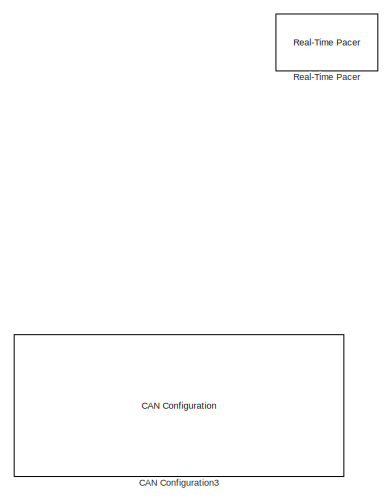
[diagram: root canvas - part 1/14, top left region]
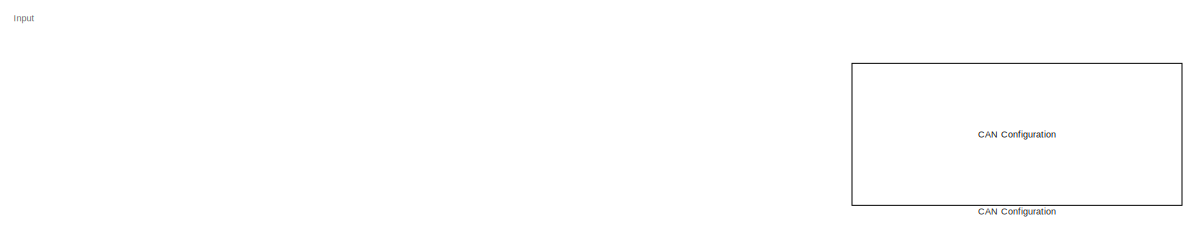
[diagram: root canvas - part 2/14, top left region]
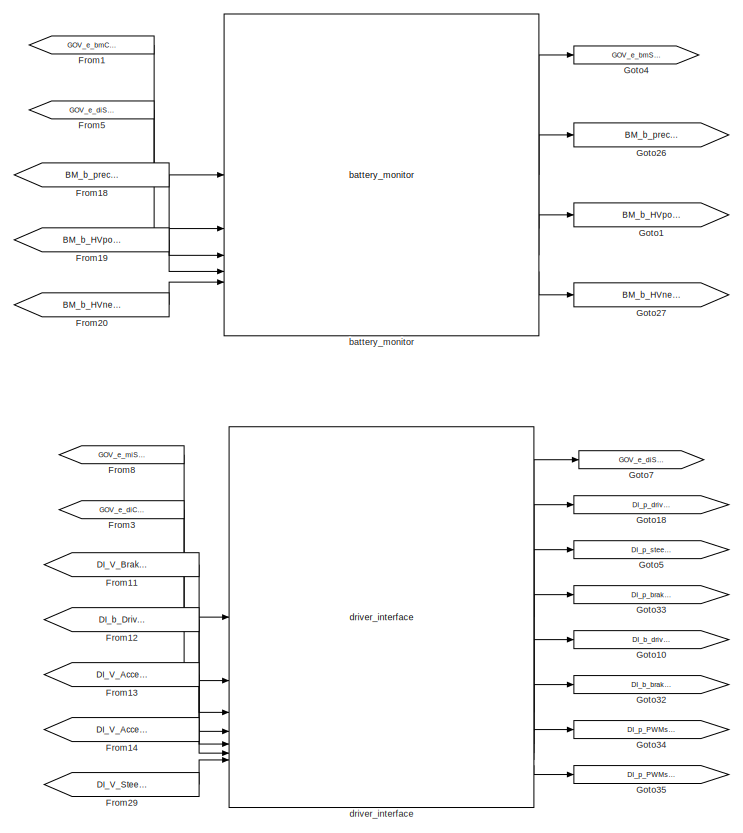
[diagram: root canvas - part 3/14, top center region]
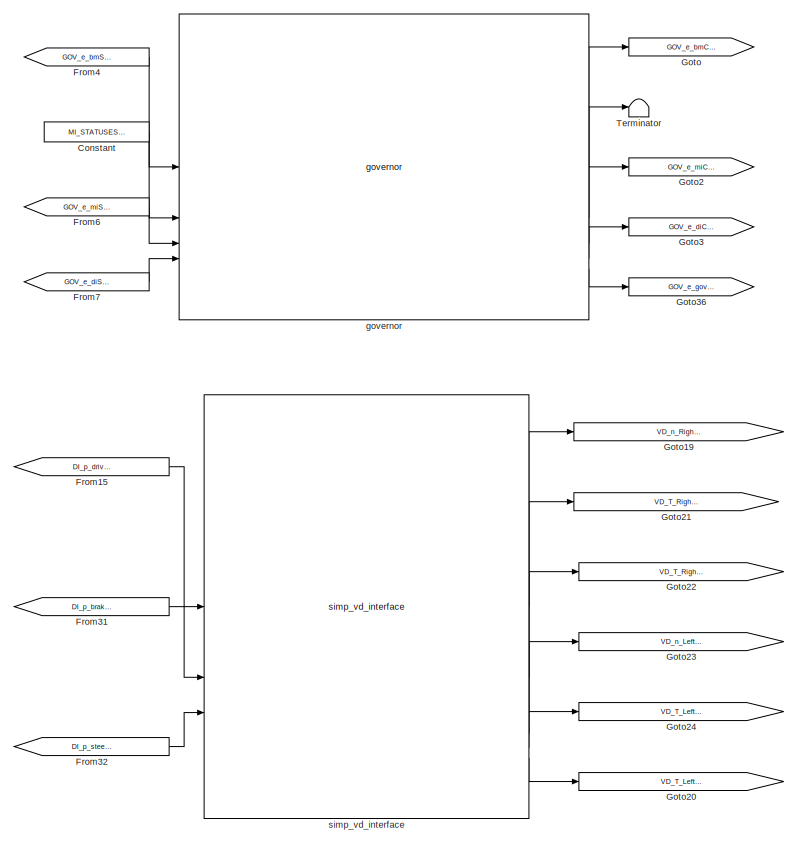
[diagram: root canvas - part 4/14, top center region]
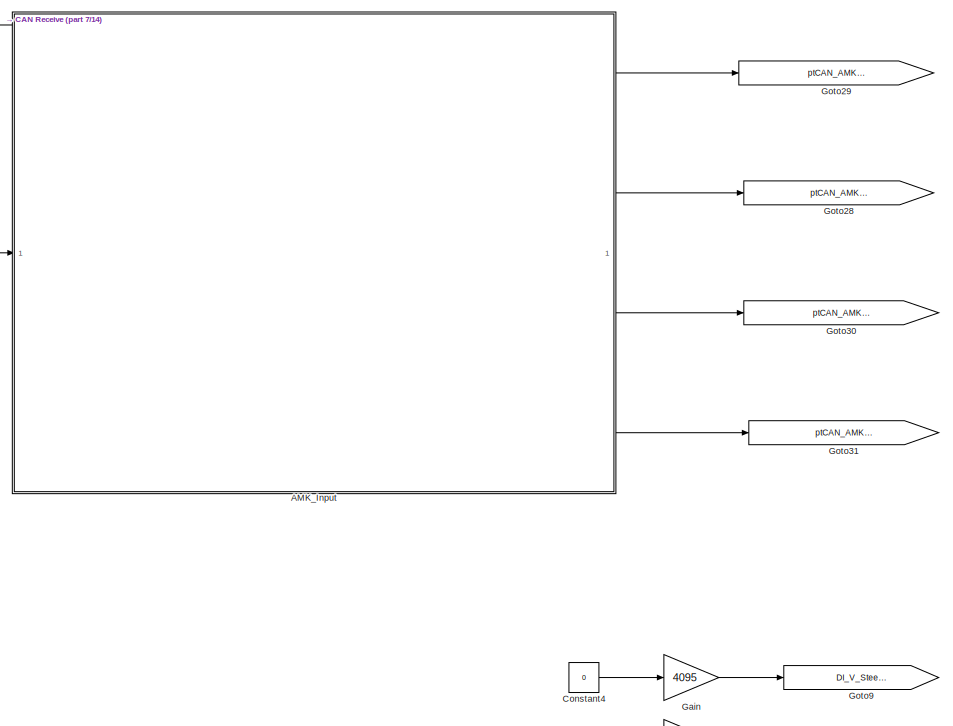
[diagram: root canvas - part 5/14, top left region]
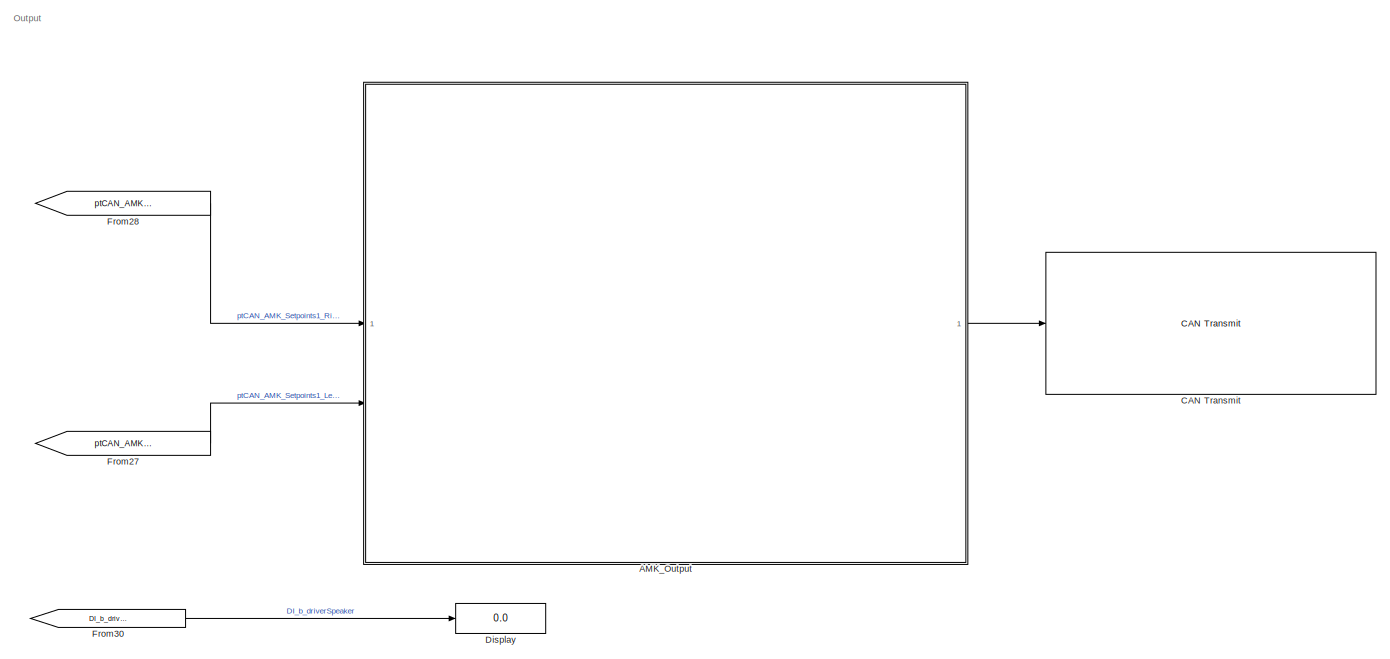
[diagram: root canvas - part 6/14, top right region]
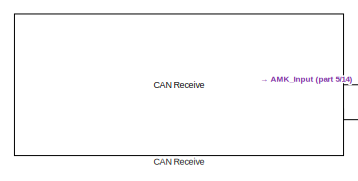
[diagram: root canvas - part 7/14, top left region]
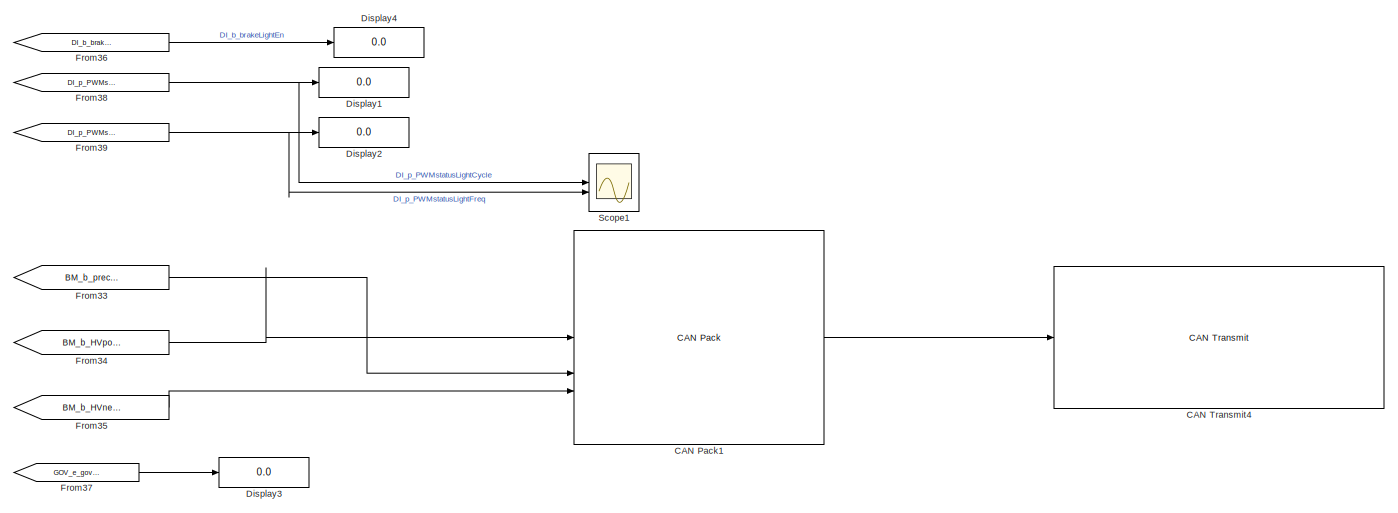
[diagram: root canvas - part 8/14, middle right region]
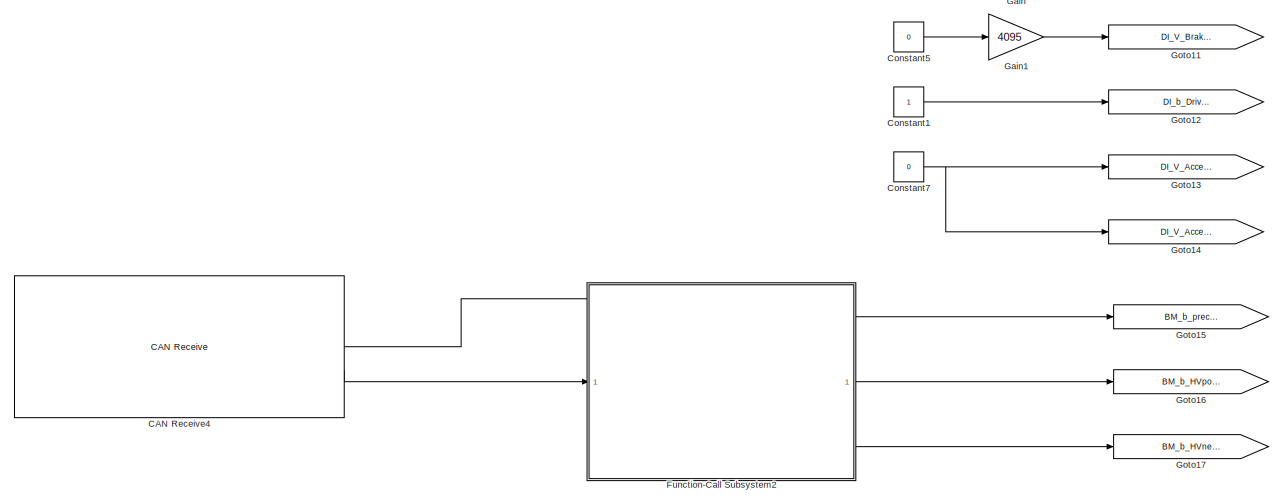
[diagram: root canvas - part 9/14, middle left region]
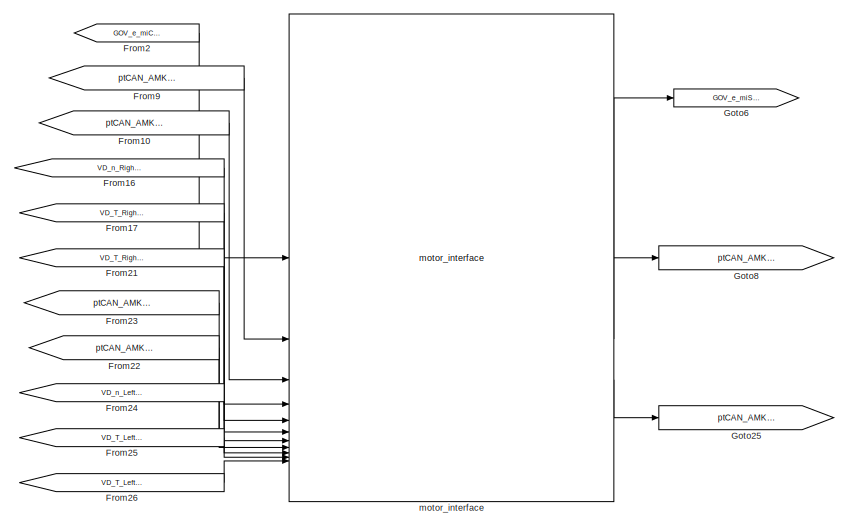
[diagram: root canvas - part 10/14, central region]
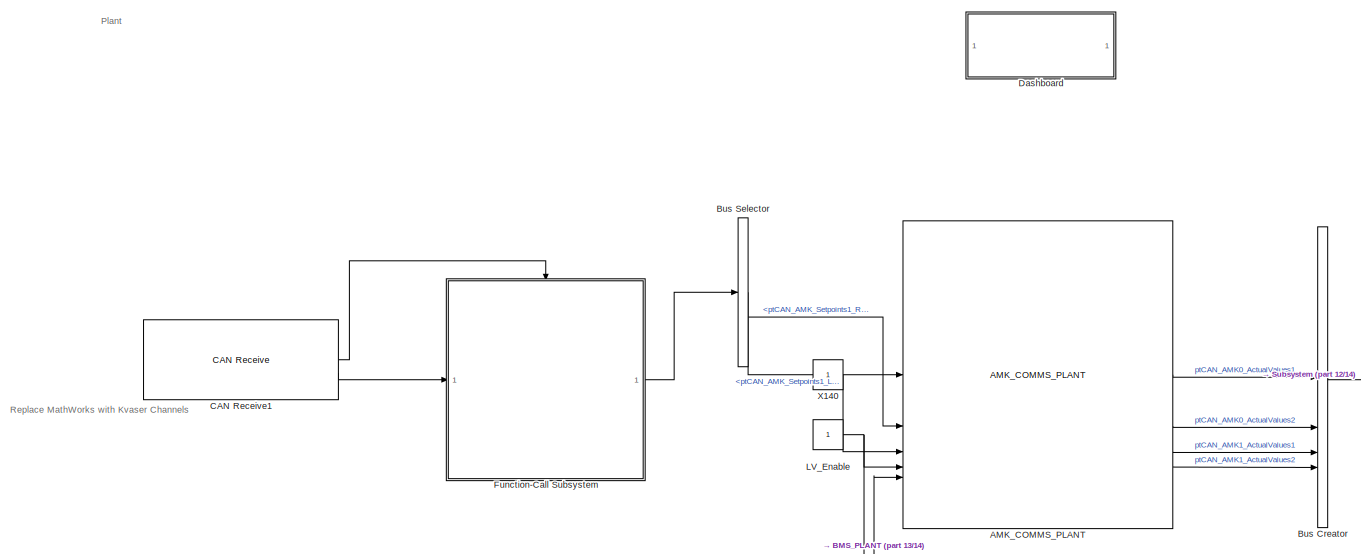
[diagram: root canvas - part 11/14, bottom center region]
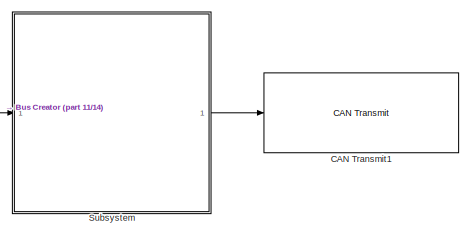
[diagram: root canvas - part 12/14, bottom center region]
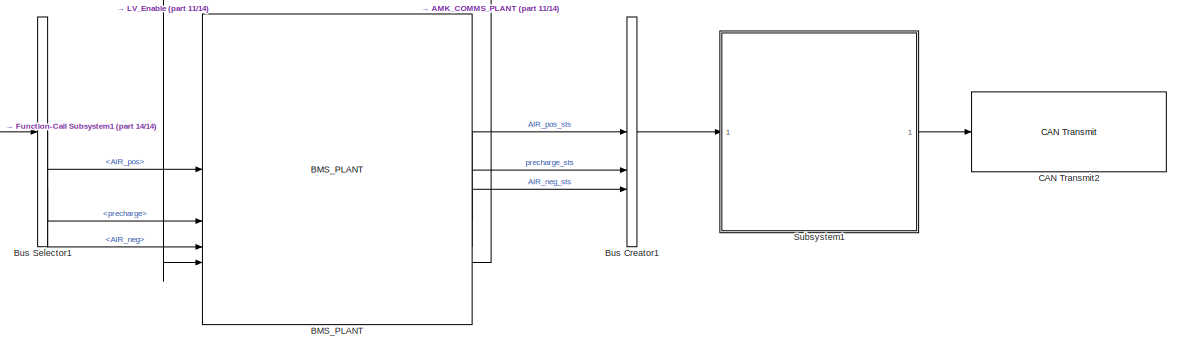
[diagram: root canvas - part 13/14, bottom center region]
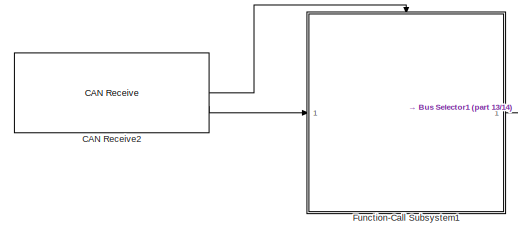
[diagram: root canvas - part 14/14, bottom center region]
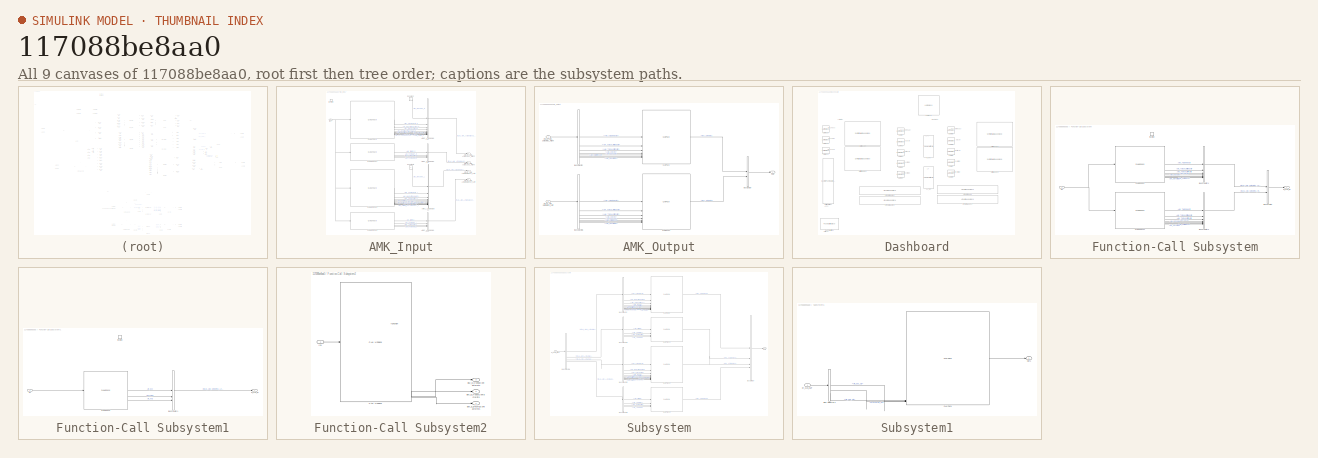
[diagram: thumbnail index - all 9 canvases of the model, root first then tree order]
MODEL slx_117088be8aa0
KIND model
CONFIG AbsTol = auto
CONFIG EnableMultiTasking = off
CONFIG FixedStep = auto
CONFIG MaxStep = auto
CONFIG MinStep = auto
CONFIG RelTol = 1e-3
CONFIG SampleTimeConstraint = Unconstrained
CONFIG SolverName = VariableStepAuto
CONFIG StartTime = 0.0
CONFIG StopTime = inf
BLOCK [Reference] AMK_COMMS_PLANT  REF=AMK_comms_plant_lib/AMK_COMMS_PLANT
  SourceBlock = AMK_comms_plant_lib/AMK_COMMS_PLANT
  SourceType = SubSystem
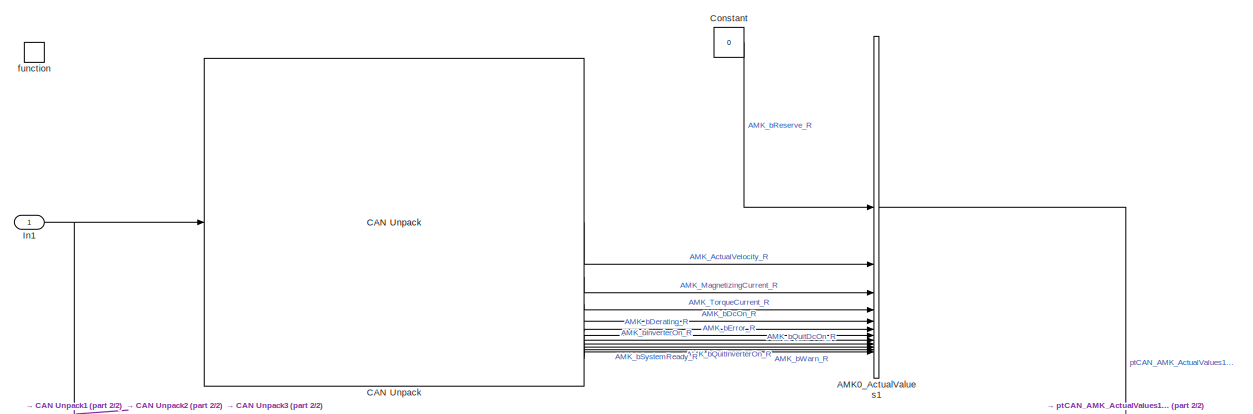
[diagram: AMK_Input - part 1/2, full width, top band]
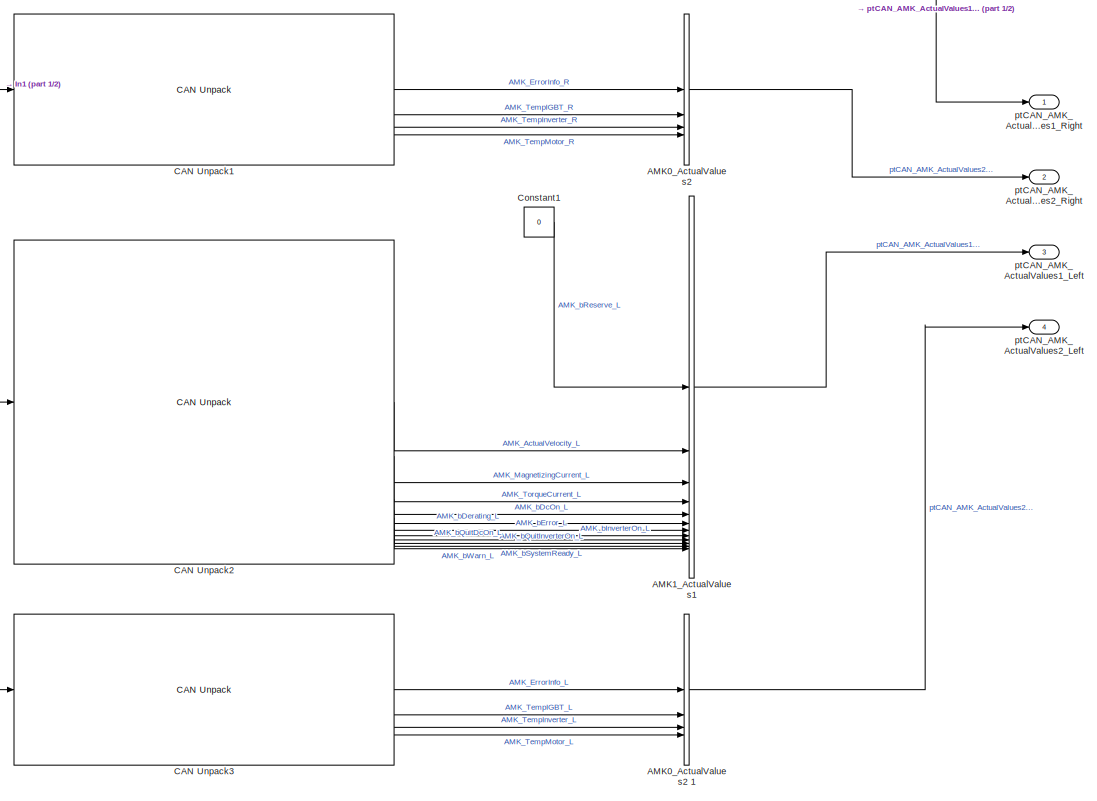
[diagram: AMK_Input - part 2/2, full width, bottom band]
BLOCK [SubSystem] AMK_Input
  TreatAsAtomicUnit = on
BLOCK [BusCreator] AMK_Input/AMK0_ActualValues1 
  DisplayOption = bar
  InheritFromInputs = on
  Inputs = 12
BLOCK [BusCreator] AMK_Input/AMK0_ActualValues2 
  DisplayOption = bar
  InheritFromInputs = on
  Inputs = 4
BLOCK [BusCreator] AMK_Input/AMK0_ActualValues2 1
  DisplayOption = bar
  InheritFromInputs = on
  Inputs = 4
BLOCK [BusCreator] AMK_Input/AMK1_ActualValues1
  DisplayOption = bar
  InheritFromInputs = on
  Inputs = 12
BLOCK [Reference] AMK_Input/CAN Unpack  REF=canmsglib/CAN Unpack
  LibrarySourceBlock = canlib/CAN Unpack
  SourceBlock = canmsglib/CAN Unpack
  SourceType = CAN Unpack
BLOCK [Reference] AMK_Input/CAN Unpack1  REF=canmsglib/CAN Unpack
  LibrarySourceBlock = canlib/CAN Unpack
  SourceBlock = canmsglib/CAN Unpack
  SourceType = CAN Unpack
BLOCK [Reference] AMK_Input/CAN Unpack2  REF=canmsglib/CAN Unpack
  LibrarySourceBlock = canlib/CAN Unpack
  SourceBlock = canmsglib/CAN Unpack
  SourceType = CAN Unpack
BLOCK [Reference] AMK_Input/CAN Unpack3  REF=canmsglib/CAN Unpack
  LibrarySourceBlock = canlib/CAN Unpack
  SourceBlock = canmsglib/CAN Unpack
  SourceType = CAN Unpack
BLOCK [Constant] AMK_Input/Constant
  Value = 0
BLOCK [Constant] AMK_Input/Constant1
  Value = 0
BLOCK [Inport] AMK_Input/In1
BLOCK [TriggerPort] AMK_Input/function
  StatesWhenEnabling = held
  TriggerType = function-call
  VariantControl = (inherit)
BLOCK [Outport] AMK_Input/ptCAN_AMK_ActualValues1_Left
  Port = 3
BLOCK [Outport] AMK_Input/ptCAN_AMK_ActualValues1_Right
BLOCK [Outport] AMK_Input/ptCAN_AMK_ActualValues2_Left
  Port = 4
BLOCK [Outport] AMK_Input/ptCAN_AMK_ActualValues2_Right
  Port = 2
BLOCK [SubSystem] AMK_Output
BLOCK [BusCreator] AMK_Output/Bus Creator
  DisplayOption = bar
  InheritFromInputs = on
  Inputs = 2
BLOCK [BusSelector] AMK_Output/Bus Selector
  OutputSignals = AMK_TargetVelocity,AMK_TorqueLimitNegativ,AMK_TorqueLimitPositiv,AMK_bDcOn,AMK_bEnable,AMK_bErrorReset,AMK_bInverterOn
BLOCK [BusSelector] AMK_Output/Bus Selector1
  OutputSignals = AMK_TargetVelocity,AMK_TorqueLimitNegativ,AMK_TorqueLimitPositiv,AMK_bDcOn,AMK_bEnable,AMK_bErrorReset,AMK_bInverterOn
BLOCK [Reference] AMK_Output/CAN Pack  REF=canmsglib/CAN Pack
  LibrarySourceBlock = canlib/CAN Pack
  SourceBlock = canmsglib/CAN Pack
  SourceType = CAN Pack
BLOCK [Reference] AMK_Output/CAN Pack1  REF=canmsglib/CAN Pack
  LibrarySourceBlock = canlib/CAN Pack
  SourceBlock = canmsglib/CAN Pack
  SourceType = CAN Pack
BLOCK [Outport] AMK_Output/Out1
BLOCK [Inport] AMK_Output/ptCAN_AMK_Setpoints1_Left
  Port = 2
BLOCK [Inport] AMK_Output/ptCAN_AMK_Setpoints1_Right
BLOCK [Reference] BMS_PLANT  REF=BMS_plant_lib/BMS_PLANT
  SourceBlock = BMS_plant_lib/BMS_PLANT
  SourceType = SubSystem
BLOCK [BusCreator] Bus Creator
  DisplayOption = bar
  InheritFromInputs = on
  Inputs = 4
BLOCK [BusCreator] Bus Creator1
  DisplayOption = bar
  InheritFromInputs = on
  Inputs = 3
BLOCK [BusSelector] Bus Selector
  OutputSignals = ptCAN_AMK_Setpoints1_Left,ptCAN_AMK_Setpoints1_Right
BLOCK [BusSelector] Bus Selector1
  OutputSignals = AIR_pos,precharge,AIR_neg
BLOCK [Reference] CAN Configuration  REF=canlib/CAN Configuration
  SourceBlock = canlib/CAN Configuration
  SourceType = CAN Configuration
BLOCK [Reference] CAN Configuration3  REF=canlib/CAN Configuration
  SourceBlock = canlib/CAN Configuration
  SourceType = CAN Configuration
BLOCK [Reference] CAN Pack1  REF=canmsglib/CAN Pack
  LibrarySourceBlock = embeddedtargetslib/Host Communication/CAN Pack
  SourceBlock = canmsglib/CAN Pack
  SourceType = CAN Pack
BLOCK [Reference] CAN Receive  REF=canlib/CAN Receive
  SourceBlock = canlib/CAN Receive
  SourceType = CAN Receive
BLOCK [Reference] CAN Receive1  REF=canlib/CAN Receive
  SourceBlock = canlib/CAN Receive
  SourceType = CAN Receive
BLOCK [Reference] CAN Receive2  REF=canlib/CAN Receive
  SourceBlock = canlib/CAN Receive
  SourceType = CAN Receive
BLOCK [Reference] CAN Receive4  REF=canlib/CAN Receive
  SourceBlock = canlib/CAN Receive
  SourceType = CAN Receive
BLOCK [Reference] CAN Transmit  REF=canlib/CAN Transmit
  SourceBlock = canlib/CAN Transmit
  SourceType = CAN Transmit
BLOCK [Reference] CAN Transmit1  REF=canlib/CAN Transmit
  SourceBlock = canlib/CAN Transmit
  SourceType = CAN Transmit
BLOCK [Reference] CAN Transmit2  REF=canlib/CAN Transmit
  SourceBlock = canlib/CAN Transmit
  SourceType = CAN Transmit
BLOCK [Reference] CAN Transmit4  REF=canlib/CAN Transmit
  SourceBlock = canlib/CAN Transmit
  SourceType = CAN Transmit
BLOCK [Constant] Constant
  OutDataTypeStr = Enum: MI_STATUSES
  Value = MI_STATUSES.STS_INIT
BLOCK [Constant] Constant1
  VectorParams1D = off
BLOCK [Constant] Constant4
  Value = 0
BLOCK [Constant] Constant5
  Value = 0
BLOCK [Constant] Constant7
  Value = 0
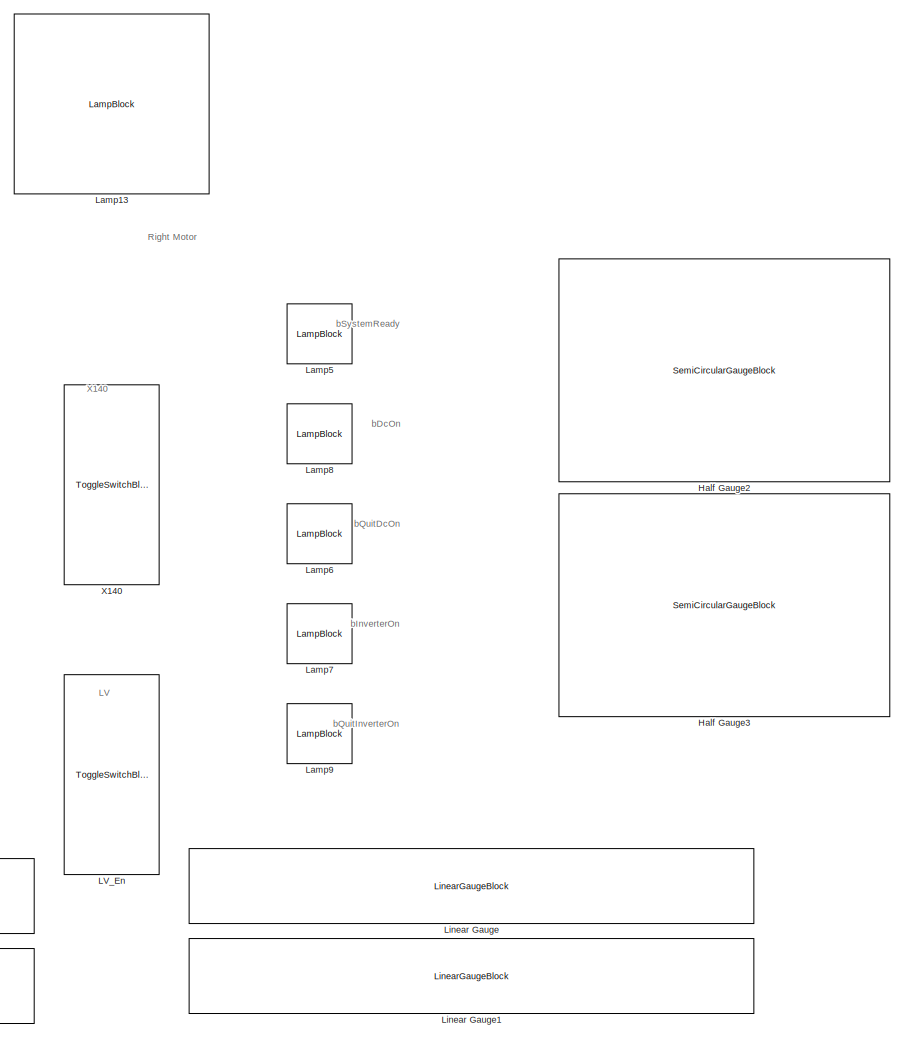
[diagram: Dashboard - part 1/2, right side, full height]
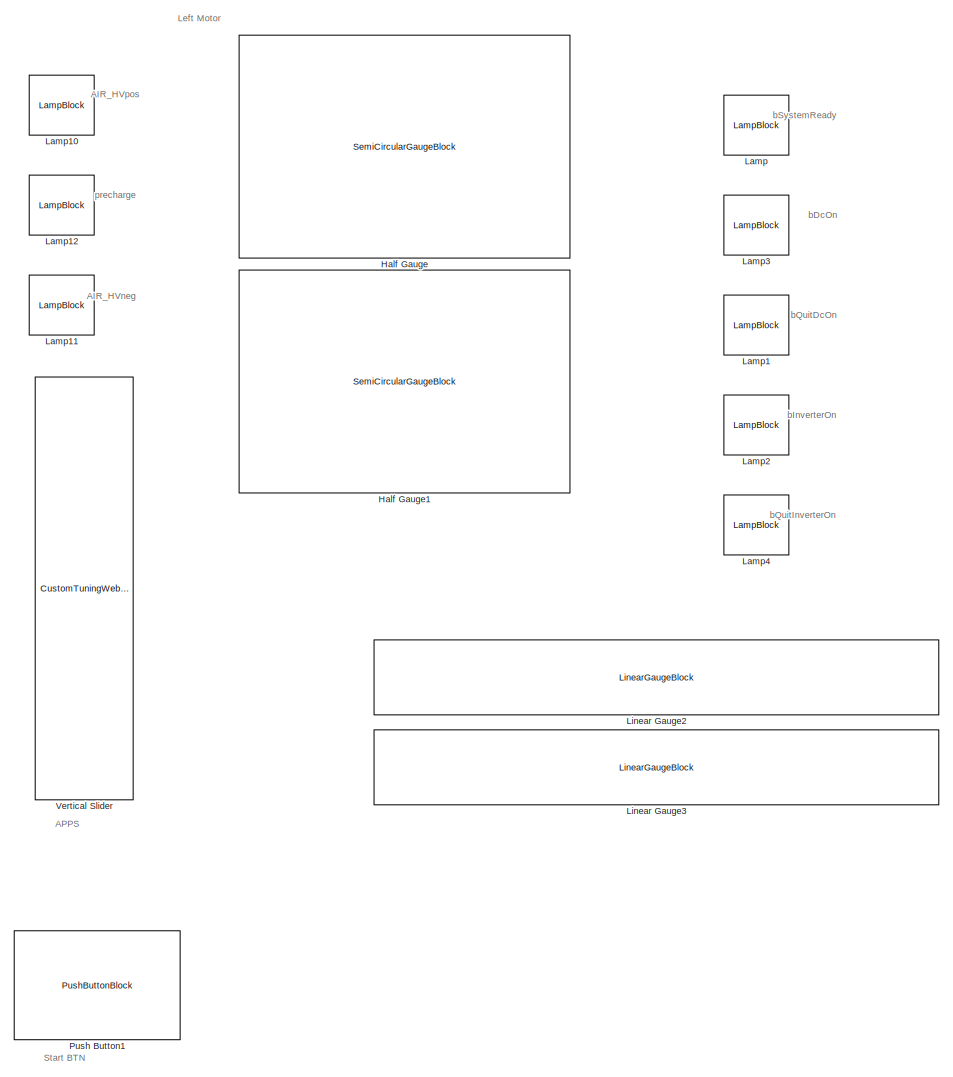
[diagram: Dashboard - part 2/2, left side, full height]
BLOCK [SubSystem] Dashboard
BLOCK [SemiCircularGaugeBlock] Dashboard/Half Gauge
  LabelPosition = Bottom
  ScaleMax = 20000
  TickInterval = 2000
BLOCK [SemiCircularGaugeBlock] Dashboard/Half Gauge1
  LabelPosition = Bottom
  ScaleMax = 1000
  TickInterval = 100
BLOCK [SemiCircularGaugeBlock] Dashboard/Half Gauge2
  LabelPosition = Bottom
  ScaleMax = 20000
  TickInterval = 2000
BLOCK [SemiCircularGaugeBlock] Dashboard/Half Gauge3
  LabelPosition = Bottom
  ScaleMax = 1000
  TickInterval = 100
BLOCK [ToggleSwitchBlock] Dashboard/LV_En
  LabelPosition = Bottom
BLOCK [LampBlock] Dashboard/Lamp
  LabelPosition = Hide
BLOCK [LampBlock] Dashboard/Lamp1
  LabelPosition = Hide
BLOCK [LampBlock] Dashboard/Lamp10
  LabelPosition = Hide
BLOCK [LampBlock] Dashboard/Lamp11
  LabelPosition = Hide
BLOCK [LampBlock] Dashboard/Lamp12
  LabelPosition = Hide
BLOCK [LampBlock] Dashboard/Lamp13
  LabelPosition = Hide
BLOCK [LampBlock] Dashboard/Lamp2
  LabelPosition = Hide
BLOCK [LampBlock] Dashboard/Lamp3
  LabelPosition = Hide
BLOCK [LampBlock] Dashboard/Lamp4
  LabelPosition = Hide
BLOCK [LampBlock] Dashboard/Lamp5
  LabelPosition = Hide
BLOCK [LampBlock] Dashboard/Lamp6
  LabelPosition = Hide
BLOCK [LampBlock] Dashboard/Lamp7
  LabelPosition = Hide
BLOCK [LampBlock] Dashboard/Lamp8
  LabelPosition = Hide
BLOCK [LampBlock] Dashboard/Lamp9
  LabelPosition = Hide
BLOCK [LinearGaugeBlock] Dashboard/Linear Gauge
  ScaleMax = 20000
  TickInterval = 2000
BLOCK [LinearGaugeBlock] Dashboard/Linear Gauge1
  ScaleMax = 1000
  TickInterval = 100
BLOCK [LinearGaugeBlock] Dashboard/Linear Gauge2
  ScaleMax = 20000
  TickInterval = 2000
BLOCK [LinearGaugeBlock] Dashboard/Linear Gauge3
  ScaleMax = 1000
  TickInterval = 100
BLOCK [PushButtonBlock] Dashboard/Push Button1
  OffValue = 1.000000
  OnValue = 0
BLOCK [CustomTuningWebBlock] Dashboard/Vertical Slider
  Configuration = {"components":[{"name":"LinearScaleComponent","settings":{"bounds":{"max":5000,"min":0,"tickInterval":"auto"},"internalTickHeightScaleFactor":0.5,"labelColor":[255,255,200],"labelFont":{"font":"Arial","fontSize":12},"labelOffset":0.05,"labelTransparency":1,"needleImage":{"size":[596,842],"src":"data:image\/svg+xml;base64,PD94bWwgdmVyc2lvbj0iMS4wIiBlbmNvZGluZz0idXRmLTgiPz4NCjwhLS0gR2VuZXJhdG9yOiBBZ...<+5494ch>
  LabelPosition = Hide
  ShowInitialText = on
BLOCK [ToggleSwitchBlock] Dashboard/X140
  LabelPosition = Bottom
BLOCK [Display] Display
  Decimation = 1
BLOCK [Display] Display1
  Decimation = 1
BLOCK [Display] Display2
  Decimation = 1
BLOCK [Display] Display3
  Decimation = 1
BLOCK [Display] Display4
  Decimation = 1
BLOCK [From] From1
  GotoTag = GOV_e_bmCmd
BLOCK [From] From10
  GotoTag = ptCAN_AMK_ActualValues2_Right
BLOCK [From] From11
  GotoTag = DI_V_BrakePedalPos
BLOCK [From] From12
  GotoTag = DI_b_DriverButton
BLOCK [From] From13
  GotoTag = DI_V_AccelPedalPos1
BLOCK [From] From14
  GotoTag = DI_V_AccelPedalPos2
BLOCK [From] From15
  GotoTag = DI_p_driverTorqueRequest
BLOCK [From] From16
  GotoTag = VD_n_RightMotorSpeedRequest
BLOCK [From] From17
  GotoTag = VD_T_RightMotorTorqueLimitPositive
BLOCK [From] From18
  GotoTag = BM_b_prechrgContactorSts
BLOCK [From] From19
  GotoTag = BM_b_HVposContactorSts
BLOCK [From] From2
  GotoTag = GOV_e_miCmd
BLOCK [From] From20
  GotoTag = BM_b_HVnegContactorSts
BLOCK [From] From21
  GotoTag = VD_T_RightMotorTorqueLimitNegative
BLOCK [From] From22
  GotoTag = ptCAN_AMK_ActualValues2_Left
BLOCK [From] From23
  GotoTag = ptCAN_AMK_ActualValues1_Left
BLOCK [From] From24
  GotoTag = VD_n_LeftMotorSpeedRequest
BLOCK [From] From25
  GotoTag = VD_T_LeftMotorTorqueLimitPositive
BLOCK [From] From26
  GotoTag = VD_T_LeftMotorTorqueLimitNegative
BLOCK [From] From27
  GotoTag = ptCAN_AMK_Setpoints1_Left
BLOCK [From] From28
  GotoTag = ptCAN_AMK_Setpoints1_Right
BLOCK [From] From29
  GotoTag = DI_V_SteeringAngle
BLOCK [From] From3
  GotoTag = GOV_e_diCmd
BLOCK [From] From30
  GotoTag = DI_b_driverSpeaker
BLOCK [From] From31
  GotoTag = DI_p_brakePedalPosition
BLOCK [From] From32
  GotoTag = DI_p_steeringAngle
BLOCK [From] From33
  GotoTag = BM_b_prechargeContactorCMD
BLOCK [From] From34
  GotoTag = BM_b_HVposContactorCMD
BLOCK [From] From35
  GotoTag = BM_b_HVnegContactorCMD
BLOCK [From] From36
  GotoTag = DI_b_brakeLightEn
BLOCK [From] From37
  GotoTag = GOV_e_govSts
BLOCK [From] From38
  GotoTag = DI_p_PWMstatusLightCycle
BLOCK [From] From39
  GotoTag = DI_p_PWMstatusLightFreq
BLOCK [From] From4
  GotoTag = GOV_e_bmSts
BLOCK [From] From5
  GotoTag = GOV_e_diSts
BLOCK [From] From6
  GotoTag = GOV_e_miSts
BLOCK [From] From7
  GotoTag = GOV_e_diSts
BLOCK [From] From8
  GotoTag = GOV_e_miSts
BLOCK [From] From9
  GotoTag = ptCAN_AMK_ActualValues1_Right
BLOCK [SubSystem] Function-Call Subsystem
  TreatAsAtomicUnit = on
BLOCK [BusCreator] Function-Call Subsystem/Bus Creator
  DisplayOption = bar
  InheritFromInputs = on
  Inputs = 2
BLOCK [BusCreator] Function-Call Subsystem/Bus Creator1
  DisplayOption = bar
  InheritFromInputs = on
  Inputs = 7
BLOCK [BusCreator] Function-Call Subsystem/Bus Creator2
  DisplayOption = bar
  InheritFromInputs = on
  Inputs = 7
BLOCK [Reference] Function-Call Subsystem/CAN Unpack  REF=canmsglib/CAN Unpack
  LibrarySourceBlock = canlib/CAN Unpack
  SourceBlock = canmsglib/CAN Unpack
  SourceType = CAN Unpack
BLOCK [Reference] Function-Call Subsystem/CAN Unpack1  REF=canmsglib/CAN Unpack
  LibrarySourceBlock = canlib/CAN Unpack
  SourceBlock = canmsglib/CAN Unpack
  SourceType = CAN Unpack
BLOCK [Inport] Function-Call Subsystem/In1
BLOCK [TriggerPort] Function-Call Subsystem/function
  StatesWhenEnabling = held
  TriggerType = function-call
  VariantControl = (inherit)
BLOCK [Outport] Function-Call Subsystem/pt_CAN_IN
BLOCK [SubSystem] Function-Call Subsystem1
  TreatAsAtomicUnit = on
BLOCK [BusCreator] Function-Call Subsystem1/Bus Creator1
  DisplayOption = bar
  InheritFromInputs = on
  Inputs = 3
BLOCK [Reference] Function-Call Subsystem1/CAN Unpack  REF=canmsglib/CAN Unpack
  LibrarySourceBlock = canlib/CAN Unpack
  SourceBlock = canmsglib/CAN Unpack
  SourceType = CAN Unpack
BLOCK [Inport] Function-Call Subsystem1/In1
BLOCK [TriggerPort] Function-Call Subsystem1/function
  StatesWhenEnabling = held
  TriggerType = function-call
  VariantControl = (inherit)
BLOCK [Outport] Function-Call Subsystem1/pt_CAN_IN
BLOCK [SubSystem] Function-Call Subsystem2
  TreatAsAtomicUnit = on
BLOCK [Outport] Function-Call Subsystem2/BM_b_HVnegContactorSts
  Port = 3
BLOCK [Outport] Function-Call Subsystem2/BM_b_HVposContactorSts
  Port = 2
BLOCK [Outport] Function-Call Subsystem2/BM_b_prechrgContactorSts
BLOCK [Reference] Function-Call Subsystem2/CAN Unpack  REF=canmsglib/CAN Unpack
  LibrarySourceBlock = canlib/CAN Unpack
  SourceBlock = canmsglib/CAN Unpack
  SourceType = CAN Unpack
BLOCK [Inport] Function-Call Subsystem2/In1
BLOCK [TriggerPort] Function-Call Subsystem2/function
  StatesWhenEnabling = held
  TriggerType = function-call
  VariantControl = (inherit)
BLOCK [Gain] Gain
  Gain = 4095
BLOCK [Gain] Gain1
  Gain = 4095
BLOCK [Goto] Goto
  GotoTag = GOV_e_bmCmd
BLOCK [Goto] Goto1
  GotoTag = BM_b_HVposContactorCMD
BLOCK [Goto] Goto10
  GotoTag = DI_b_driverSpeaker
BLOCK [Goto] Goto11
  GotoTag = DI_V_BrakePedalPos
BLOCK [Goto] Goto12
  GotoTag = DI_b_DriverButton
BLOCK [Goto] Goto13
  GotoTag = DI_V_AccelPedalPos1
BLOCK [Goto] Goto14
  GotoTag = DI_V_AccelPedalPos2
BLOCK [Goto] Goto15
  GotoTag = BM_b_prechrgContactorSts
BLOCK [Goto] Goto16
  GotoTag = BM_b_HVposContactorSts
BLOCK [Goto] Goto17
  GotoTag = BM_b_HVnegContactorSts
BLOCK [Goto] Goto18
  GotoTag = DI_p_driverTorqueRequest
BLOCK [Goto] Goto19
  GotoTag = VD_n_RightMotorSpeedRequest
BLOCK [Goto] Goto2
  GotoTag = GOV_e_miCmd
BLOCK [Goto] Goto20
  GotoTag = VD_T_LeftMotorTorqueLimitNegative
BLOCK [Goto] Goto21
  GotoTag = VD_T_RightMotorTorqueLimitPositive
BLOCK [Goto] Goto22
  GotoTag = VD_T_RightMotorTorqueLimitNegative
BLOCK [Goto] Goto23
  GotoTag = VD_n_LeftMotorSpeedRequest
BLOCK [Goto] Goto24
  GotoTag = VD_T_LeftMotorTorqueLimitPositive
BLOCK [Goto] Goto25
  GotoTag = ptCAN_AMK_Setpoints1_Left
BLOCK [Goto] Goto26
  GotoTag = BM_b_prechargeContactorCMD
BLOCK [Goto] Goto27
  GotoTag = BM_b_HVnegContactorCMD
  NameLocation = left
BLOCK [Goto] Goto28
  GotoTag = ptCAN_AMK_ActualValues2_Right
BLOCK [Goto] Goto29
  GotoTag = ptCAN_AMK_ActualValues1_Right
BLOCK [Goto] Goto3
  GotoTag = GOV_e_diCmd
BLOCK [Goto] Goto30
  GotoTag = ptCAN_AMK_ActualValues1_Left
BLOCK [Goto] Goto31
  GotoTag = ptCAN_AMK_ActualValues2_Left
BLOCK [Goto] Goto32
  GotoTag = DI_b_brakeLightEn
BLOCK [Goto] Goto33
  GotoTag = DI_p_brakePedalPosition
BLOCK [Goto] Goto34
  GotoTag = DI_p_PWMstatusLightCycle
BLOCK [Goto] Goto35
  GotoTag = DI_p_PWMstatusLightFreq
BLOCK [Goto] Goto36
  GotoTag = GOV_e_govSts
BLOCK [Goto] Goto4
  GotoTag = GOV_e_bmSts
BLOCK [Goto] Goto5
  GotoTag = DI_p_steeringAngle
BLOCK [Goto] Goto6
  GotoTag = GOV_e_miSts
BLOCK [Goto] Goto7
  GotoTag = GOV_e_diSts
BLOCK [Goto] Goto8
  GotoTag = ptCAN_AMK_Setpoints1_Right
BLOCK [Goto] Goto9
  GotoTag = DI_V_SteeringAngle
BLOCK [Constant] LV_Enable
BLOCK [Reference] Real-Time Pacer  REF=realtime_pacer_lib/Real-Time Pacer
  SourceBlock = realtime_pacer_lib/Real-Time Pacer
  SourceType = RealTime_Pacer
BLOCK [Scope] Scope1
  Floating = off
  NumInputPorts = 2
  ScopeSpecificationString = Simulink.scopes.TimeScopeBlockCfg('CurrentConfiguration', extmgr.ConfigurationSet(extmgr.Configuration('Core','General UI',true),extmgr.Configuration('Core','Source UI',true),extmgr.Configuration('Sources','WiredSimulink',true,'DataLoggingVariableName','ScopeData1'),extmgr.Configuration('Visuals','Time Domain',true,'SerializedDisplays',{struct('MinYLimReal','90.00000','MaxYLimReal','110.00000','YL...<+2051ch>
BLOCK [SubSystem] Subsystem
BLOCK [BusCreator] Subsystem/Bus Creator
  DisplayOption = bar
  InheritFromInputs = on
  Inputs = 4
BLOCK [BusSelector] Subsystem/Bus Selector
  OutputSignals = AMK_ActualVelocity,AMK_MagnetizingCurrent,AMK_TorqueCurrent_L,AMK_bDcOn,AMK_bDerating,AMK_bError,AMK_bInverterOn,AMK_bQuitDcOn,AMK_bQuitInverterOn,AMK_bSystemReady,AMK_bWarn
BLOCK [BusSelector] Subsystem/Bus Selector1
  OutputSignals = AMK_ErrorInfo,AMK_TempIGBT,AMK_TempInverter,AMK_TempMotor
BLOCK [BusSelector] Subsystem/Bus Selector2
  OutputSignals = AMK_ActualVelocity,AMK_MagnetizingCurrent,AMK_TorqueCurrent,AMK_bDcOn,AMK_bDerating,AMK_bError,AMK_bInverterOn,AMK_bQuitDcOn,AMK_bQuitInverterOn,AMK_bSystemReady,AMK_bWarn
BLOCK [BusSelector] Subsystem/Bus Selector3
  OutputSignals = AMK_ErrorInfo,AMK_TempIGBT,AMK_TempInverter,AMK_TempMotor
BLOCK [BusSelector] Subsystem/Bus Selector4
  OutputSignals = ptCAN_AMK0_ActualValues1,ptCAN_AMK0_ActualValues2,ptCAN_AMK1_ActualValues1,ptCAN_AMK1_ActualValues2
BLOCK [Reference] Subsystem/CAN Pack  REF=canmsglib/CAN Pack
  LibrarySourceBlock = canlib/CAN Pack
  SourceBlock = canmsglib/CAN Pack
  SourceType = CAN Pack
BLOCK [Reference] Subsystem/CAN Pack1  REF=canmsglib/CAN Pack
  LibrarySourceBlock = canlib/CAN Pack
  SourceBlock = canmsglib/CAN Pack
  SourceType = CAN Pack
BLOCK [Reference] Subsystem/CAN Pack2  REF=canmsglib/CAN Pack
  LibrarySourceBlock = canlib/CAN Pack
  SourceBlock = canmsglib/CAN Pack
  SourceType = CAN Pack
BLOCK [Reference] Subsystem/CAN Pack3  REF=canmsglib/CAN Pack
  LibrarySourceBlock = canlib/CAN Pack
  SourceBlock = canmsglib/CAN Pack
  SourceType = CAN Pack
BLOCK [Outport] Subsystem/Out1
BLOCK [Inport] Subsystem/pt_CAN_OUT
BLOCK [SubSystem] Subsystem1
BLOCK [BusSelector] Subsystem1/Bus Selector4
  OutputSignals = AIR_pos_sts,precharge_sts,AIR_neg_sts
BLOCK [Reference] Subsystem1/CAN Pack  REF=canmsglib/CAN Pack
  LibrarySourceBlock = canlib/CAN Pack
  SourceBlock = canmsglib/CAN Pack
  SourceType = CAN Pack
BLOCK [Outport] Subsystem1/Out1
BLOCK [Inport] Subsystem1/pt_CAN_OUT
BLOCK [Terminator] Terminator
BLOCK [Constant] X140
BLOCK [Reference] battery_monitor  REF=battery_monitor_lib/battery_monitor  (lib defined in slx_91b9e2d5ec61)
  SourceBlock = battery_monitor_lib/battery_monitor
  SourceType = SubSystem
BLOCK [Reference] driver_interface  REF=driver_interface_lib/driver_interface  (lib defined in slx_3cb616a1b385)
  SourceBlock = driver_interface_lib/driver_interface
  SourceType = SubSystem
BLOCK [Reference] governor  REF=governor_lib/governor  (lib defined in slx_791b6fe89bfd)
  SourceBlock = governor_lib/governor
  SourceType = SubSystem
BLOCK [Reference] motor_interface  REF=motor_interface_lib/motor_interface  (lib defined in slx_5f2d46c379c1, slx_6012f76cf487)
  SourceBlock = motor_interface_lib/motor_interface
  SourceType = SubSystem
BLOCK [Reference] simp_vd_interface  REF=simp_vd_lib/simp_vd_interface  (lib defined in slx_d7ae73b593e7)
  SourceBlock = simp_vd_lib/simp_vd_interface
  SourceType = SubSystem
ANNOTATION (root): Replace MathWorks with Kvaser Channels
ANNOTATION (root): Input
ANNOTATION (root): Plant
ANNOTATION (root): Output
ANNOTATION Dashboard: APPS
ANNOTATION Dashboard: LV
ANNOTATION Dashboard: Start BTN
ANNOTATION Dashboard: X140
ANNOTATION Dashboard: AIR_HVneg
ANNOTATION Dashboard: AIR_HVpos
ANNOTATION Dashboard: Left Motor
ANNOTATION Dashboard: Right Motor
ANNOTATION Dashboard: bDcOn
ANNOTATION Dashboard: bInverterOn
ANNOTATION Dashboard: bQuitDcOn
ANNOTATION Dashboard: bQuitInverterOn
ANNOTATION Dashboard: bSystemReady
ANNOTATION Dashboard: precharge
LINE AMK_COMMS_PLANT:1 -> Bus Creator:1
LINE AMK_COMMS_PLANT:2 -> Bus Creator:2
LINE AMK_COMMS_PLANT:3 -> Bus Creator:3
LINE AMK_COMMS_PLANT:4 -> Bus Creator:4
LINE AMK_Input/AMK0_ActualValues1 :1 -> AMK_Input/ptCAN_AMK_ActualValues1_Right:1
LINE AMK_Input/AMK0_ActualValues2 1:1 -> AMK_Input/ptCAN_AMK_ActualValues2_Left:1
LINE AMK_Input/AMK0_ActualValues2 :1 -> AMK_Input/ptCAN_AMK_ActualValues2_Right:1
LINE AMK_Input/AMK1_ActualValues1:1 -> AMK_Input/ptCAN_AMK_ActualValues1_Left:1
LINE AMK_Input/CAN Unpack1:1 -> AMK_Input/AMK0_ActualValues2 :1
LINE AMK_Input/CAN Unpack1:2 -> AMK_Input/AMK0_ActualValues2 :2
LINE AMK_Input/CAN Unpack1:3 -> AMK_Input/AMK0_ActualValues2 :3
LINE AMK_Input/CAN Unpack1:4 -> AMK_Input/AMK0_ActualValues2 :4
LINE AMK_Input/CAN Unpack2:1 -> AMK_Input/AMK1_ActualValues1:2
LINE AMK_Input/CAN Unpack2:10 -> AMK_Input/AMK1_ActualValues1:11
LINE AMK_Input/CAN Unpack2:11 -> AMK_Input/AMK1_ActualValues1:12
LINE AMK_Input/CAN Unpack2:2 -> AMK_Input/AMK1_ActualValues1:3
LINE AMK_Input/CAN Unpack2:3 -> AMK_Input/AMK1_ActualValues1:4
LINE AMK_Input/CAN Unpack2:4 -> AMK_Input/AMK1_ActualValues1:5
LINE AMK_Input/CAN Unpack2:5 -> AMK_Input/AMK1_ActualValues1:6
LINE AMK_Input/CAN Unpack2:6 -> AMK_Input/AMK1_ActualValues1:7
LINE AMK_Input/CAN Unpack2:7 -> AMK_Input/AMK1_ActualValues1:8
LINE AMK_Input/CAN Unpack2:8 -> AMK_Input/AMK1_ActualValues1:9
LINE AMK_Input/CAN Unpack2:9 -> AMK_Input/AMK1_ActualValues1:10
LINE AMK_Input/CAN Unpack3:1 -> AMK_Input/AMK0_ActualValues2 1:1
LINE AMK_Input/CAN Unpack3:2 -> AMK_Input/AMK0_ActualValues2 1:2
LINE AMK_Input/CAN Unpack3:3 -> AMK_Input/AMK0_ActualValues2 1:3
LINE AMK_Input/CAN Unpack3:4 -> AMK_Input/AMK0_ActualValues2 1:4
LINE AMK_Input/CAN Unpack:1 -> AMK_Input/AMK0_ActualValues1 :2
LINE AMK_Input/CAN Unpack:10 -> AMK_Input/AMK0_ActualValues1 :11
LINE AMK_Input/CAN Unpack:11 -> AMK_Input/AMK0_ActualValues1 :12
LINE AMK_Input/CAN Unpack:2 -> AMK_Input/AMK0_ActualValues1 :3
LINE AMK_Input/CAN Unpack:3 -> AMK_Input/AMK0_ActualValues1 :4
LINE AMK_Input/CAN Unpack:4 -> AMK_Input/AMK0_ActualValues1 :5
LINE AMK_Input/CAN Unpack:5 -> AMK_Input/AMK0_ActualValues1 :6
LINE AMK_Input/CAN Unpack:6 -> AMK_Input/AMK0_ActualValues1 :7
LINE AMK_Input/CAN Unpack:7 -> AMK_Input/AMK0_ActualValues1 :8
LINE AMK_Input/CAN Unpack:8 -> AMK_Input/AMK0_ActualValues1 :9
LINE AMK_Input/CAN Unpack:9 -> AMK_Input/AMK0_ActualValues1 :10
LINE AMK_Input/Constant1:1 -> AMK_Input/AMK1_ActualValues1:1
LINE AMK_Input/Constant:1 -> AMK_Input/AMK0_ActualValues1 :1
NET AMK_Input/In1:1 -> AMK_Input/CAN Unpack1:1, AMK_Input/CAN Unpack2:1, AMK_Input/CAN Unpack3:1, AMK_Input/CAN Unpack:1
LINE AMK_Input:1 -> Goto29:1
LINE AMK_Input:2 -> Goto28:1
LINE AMK_Input:3 -> Goto30:1
LINE AMK_Input:4 -> Goto31:1
LINE AMK_Output/Bus Creator:1 -> AMK_Output/Out1:1
LINE AMK_Output/Bus Selector1:1 -> AMK_Output/CAN Pack1:1
LINE AMK_Output/Bus Selector1:2 -> AMK_Output/CAN Pack1:2
LINE AMK_Output/Bus Selector1:3 -> AMK_Output/CAN Pack1:3
LINE AMK_Output/Bus Selector1:4 -> AMK_Output/CAN Pack1:4
LINE AMK_Output/Bus Selector1:5 -> AMK_Output/CAN Pack1:5
LINE AMK_Output/Bus Selector1:6 -> AMK_Output/CAN Pack1:6
LINE AMK_Output/Bus Selector1:7 -> AMK_Output/CAN Pack1:7
LINE AMK_Output/Bus Selector:1 -> AMK_Output/CAN Pack:1
LINE AMK_Output/Bus Selector:2 -> AMK_Output/CAN Pack:2
LINE AMK_Output/Bus Selector:3 -> AMK_Output/CAN Pack:3
LINE AMK_Output/Bus Selector:4 -> AMK_Output/CAN Pack:4
LINE AMK_Output/Bus Selector:5 -> AMK_Output/CAN Pack:5
LINE AMK_Output/Bus Selector:6 -> AMK_Output/CAN Pack:6
LINE AMK_Output/Bus Selector:7 -> AMK_Output/CAN Pack:7
LINE AMK_Output/CAN Pack1:1 -> AMK_Output/Bus Creator:2
LINE AMK_Output/CAN Pack:1 -> AMK_Output/Bus Creator:1
LINE AMK_Output/ptCAN_AMK_Setpoints1_Left:1 -> AMK_Output/Bus Selector1:1
LINE AMK_Output/ptCAN_AMK_Setpoints1_Right:1 -> AMK_Output/Bus Selector:1
LINE AMK_Output:1 -> CAN Transmit:1
LINE BMS_PLANT:1 -> Bus Creator1:1
LINE BMS_PLANT:2 -> Bus Creator1:2
LINE BMS_PLANT:3 -> Bus Creator1:3
LINE BMS_PLANT:4 -> AMK_COMMS_PLANT:5
LINE Bus Creator1:1 -> Subsystem1:1
LINE Bus Creator:1 -> Subsystem:1
LINE Bus Selector1:1 -> BMS_PLANT:1
LINE Bus Selector1:2 -> BMS_PLANT:2
LINE Bus Selector1:3 -> BMS_PLANT:3
LINE Bus Selector:1 -> AMK_COMMS_PLANT:1
LINE Bus Selector:2 -> AMK_COMMS_PLANT:2
LINE CAN Pack1:1 -> CAN Transmit4:1
LINE CAN Receive1:1 -> Function-Call Subsystem:trigger
LINE CAN Receive1:2 -> Function-Call Subsystem:1
LINE CAN Receive2:1 -> Function-Call Subsystem1:trigger
LINE CAN Receive2:2 -> Function-Call Subsystem1:1
LINE CAN Receive4:1 -> Function-Call Subsystem2:trigger
LINE CAN Receive4:2 -> Function-Call Subsystem2:1
LINE CAN Receive:1 -> AMK_Input:trigger
LINE CAN Receive:2 -> AMK_Input:1
LINE Constant1:1 -> Goto12:1
LINE Constant4:1 -> Gain:1
LINE Constant5:1 -> Gain1:1
NET Constant7:1 -> Goto13:1, Goto14:1
LINE Constant:1 -> governor:2
LINE From10:1 -> motor_interface:3
LINE From11:1 -> driver_interface:3
LINE From12:1 -> driver_interface:4
LINE From13:1 -> driver_interface:5
LINE From14:1 -> driver_interface:6
LINE From15:1 -> simp_vd_interface:1
LINE From16:1 -> motor_interface:4
LINE From17:1 -> motor_interface:5
LINE From18:1 -> battery_monitor:3
LINE From19:1 -> battery_monitor:4
LINE From1:1 -> battery_monitor:1
LINE From20:1 -> battery_monitor:5
LINE From21:1 -> motor_interface:6
LINE From22:1 -> motor_interface:8
LINE From23:1 -> motor_interface:7
LINE From24:1 -> motor_interface:9
LINE From25:1 -> motor_interface:10
LINE From26:1 -> motor_interface:11
LINE From27:1 -> AMK_Output:2
LINE From28:1 -> AMK_Output:1
LINE From29:1 -> driver_interface:7
LINE From2:1 -> motor_interface:1
LINE From30:1 -> Display:1
LINE From31:1 -> simp_vd_interface:2
LINE From32:1 -> simp_vd_interface:3
LINE From33:1 -> CAN Pack1:2
LINE From34:1 -> CAN Pack1:1
LINE From35:1 -> CAN Pack1:3
LINE From36:1 -> Display4:1
LINE From37:1 -> Display3:1
NET From38:1 -> Display1:1, Scope1:1
NET From39:1 -> Display2:1, Scope1:2
LINE From3:1 -> driver_interface:2
LINE From4:1 -> governor:1
LINE From5:1 -> battery_monitor:2
LINE From6:1 -> governor:3
LINE From7:1 -> governor:4
LINE From8:1 -> driver_interface:1
LINE From9:1 -> motor_interface:2
LINE Function-Call Subsystem/Bus Creator1:1 -> Function-Call Subsystem/Bus Creator:1
LINE Function-Call Subsystem/Bus Creator2:1 -> Function-Call Subsystem/Bus Creator:2
LINE Function-Call Subsystem/Bus Creator:1 -> Function-Call Subsystem/pt_CAN_IN:1
LINE Function-Call Subsystem/CAN Unpack1:1 -> Function-Call Subsystem/Bus Creator2:1
LINE Function-Call Subsystem/CAN Unpack1:2 -> Function-Call Subsystem/Bus Creator2:2
LINE Function-Call Subsystem/CAN Unpack1:3 -> Function-Call Subsystem/Bus Creator2:3
LINE Function-Call Subsystem/CAN Unpack1:4 -> Function-Call Subsystem/Bus Creator2:4
LINE Function-Call Subsystem/CAN Unpack1:5 -> Function-Call Subsystem/Bus Creator2:5
LINE Function-Call Subsystem/CAN Unpack1:6 -> Function-Call Subsystem/Bus Creator2:6
LINE Function-Call Subsystem/CAN Unpack1:7 -> Function-Call Subsystem/Bus Creator2:7
LINE Function-Call Subsystem/CAN Unpack:1 -> Function-Call Subsystem/Bus Creator1:1
LINE Function-Call Subsystem/CAN Unpack:2 -> Function-Call Subsystem/Bus Creator1:2
LINE Function-Call Subsystem/CAN Unpack:3 -> Function-Call Subsystem/Bus Creator1:3
LINE Function-Call Subsystem/CAN Unpack:4 -> Function-Call Subsystem/Bus Creator1:4
LINE Function-Call Subsystem/CAN Unpack:5 -> Function-Call Subsystem/Bus Creator1:5
LINE Function-Call Subsystem/CAN Unpack:6 -> Function-Call Subsystem/Bus Creator1:6
LINE Function-Call Subsystem/CAN Unpack:7 -> Function-Call Subsystem/Bus Creator1:7
NET Function-Call Subsystem/In1:1 -> Function-Call Subsystem/CAN Unpack1:1, Function-Call Subsystem/CAN Unpack:1
LINE Function-Call Subsystem1/Bus Creator1:1 -> Function-Call Subsystem1/pt_CAN_IN:1
LINE Function-Call Subsystem1/CAN Unpack:1 -> Function-Call Subsystem1/Bus Creator1:1
LINE Function-Call Subsystem1/CAN Unpack:2 -> Function-Call Subsystem1/Bus Creator1:2
LINE Function-Call Subsystem1/CAN Unpack:3 -> Function-Call Subsystem1/Bus Creator1:3
LINE Function-Call Subsystem1/In1:1 -> Function-Call Subsystem1/CAN Unpack:1
LINE Function-Call Subsystem1:1 -> Bus Selector1:1
LINE Function-Call Subsystem2/CAN Unpack:22 -> Function-Call Subsystem2/BM_b_HVnegContactorSts:1
LINE Function-Call Subsystem2/CAN Unpack:23 -> Function-Call Subsystem2/BM_b_HVposContactorSts:1
LINE Function-Call Subsystem2/CAN Unpack:24 -> Function-Call Subsystem2/BM_b_prechrgContactorSts:1
LINE Function-Call Subsystem2/In1:1 -> Function-Call Subsystem2/CAN Unpack:1
LINE Function-Call Subsystem2:1 -> Goto15:1
LINE Function-Call Subsystem2:2 -> Goto16:1
LINE Function-Call Subsystem2:3 -> Goto17:1
LINE Function-Call Subsystem:1 -> Bus Selector:1
LINE Gain1:1 -> Goto11:1
LINE Gain:1 -> Goto9:1
NET LV_Enable:1 -> AMK_COMMS_PLANT:4, BMS_PLANT:4
LINE Subsystem/Bus Creator:1 -> Subsystem/Out1:1
LINE Subsystem/Bus Selector1:1 -> Subsystem/CAN Pack1:1
LINE Subsystem/Bus Selector1:2 -> Subsystem/CAN Pack1:2
LINE Subsystem/Bus Selector1:3 -> Subsystem/CAN Pack1:3
LINE Subsystem/Bus Selector1:4 -> Subsystem/CAN Pack1:4
LINE Subsystem/Bus Selector2:1 -> Subsystem/CAN Pack2:1
LINE Subsystem/Bus Selector2:10 -> Subsystem/CAN Pack2:10
LINE Subsystem/Bus Selector2:11 -> Subsystem/CAN Pack2:11
LINE Subsystem/Bus Selector2:2 -> Subsystem/CAN Pack2:2
LINE Subsystem/Bus Selector2:3 -> Subsystem/CAN Pack2:3
LINE Subsystem/Bus Selector2:4 -> Subsystem/CAN Pack2:4
LINE Subsystem/Bus Selector2:5 -> Subsystem/CAN Pack2:5
LINE Subsystem/Bus Selector2:6 -> Subsystem/CAN Pack2:6
LINE Subsystem/Bus Selector2:7 -> Subsystem/CAN Pack2:7
LINE Subsystem/Bus Selector2:8 -> Subsystem/CAN Pack2:8
LINE Subsystem/Bus Selector2:9 -> Subsystem/CAN Pack2:9
LINE Subsystem/Bus Selector3:1 -> Subsystem/CAN Pack3:1
LINE Subsystem/Bus Selector3:2 -> Subsystem/CAN Pack3:2
LINE Subsystem/Bus Selector3:3 -> Subsystem/CAN Pack3:3
LINE Subsystem/Bus Selector3:4 -> Subsystem/CAN Pack3:4
LINE Subsystem/Bus Selector4:1 -> Subsystem/Bus Selector:1
LINE Subsystem/Bus Selector4:2 -> Subsystem/Bus Selector1:1
LINE Subsystem/Bus Selector4:3 -> Subsystem/Bus Selector2:1
LINE Subsystem/Bus Selector4:4 -> Subsystem/Bus Selector3:1
LINE Subsystem/Bus Selector:1 -> Subsystem/CAN Pack:1
LINE Subsystem/Bus Selector:10 -> Subsystem/CAN Pack:10
LINE Subsystem/Bus Selector:11 -> Subsystem/CAN Pack:11
LINE Subsystem/Bus Selector:2 -> Subsystem/CAN Pack:2
LINE Subsystem/Bus Selector:3 -> Subsystem/CAN Pack:3
LINE Subsystem/Bus Selector:4 -> Subsystem/CAN Pack:4
LINE Subsystem/Bus Selector:5 -> Subsystem/CAN Pack:5
LINE Subsystem/Bus Selector:6 -> Subsystem/CAN Pack:6
LINE Subsystem/Bus Selector:7 -> Subsystem/CAN Pack:7
LINE Subsystem/Bus Selector:8 -> Subsystem/CAN Pack:8
LINE Subsystem/Bus Selector:9 -> Subsystem/CAN Pack:9
LINE Subsystem/CAN Pack1:1 -> Subsystem/Bus Creator:2
LINE Subsystem/CAN Pack2:1 -> Subsystem/Bus Creator:3
LINE Subsystem/CAN Pack3:1 -> Subsystem/Bus Creator:4
LINE Subsystem/CAN Pack:1 -> Subsystem/Bus Creator:1
LINE Subsystem/pt_CAN_OUT:1 -> Subsystem/Bus Selector4:1
LINE Subsystem1/Bus Selector4:1 -> Subsystem1/CAN Pack:23
LINE Subsystem1/Bus Selector4:2 -> Subsystem1/CAN Pack:24
LINE Subsystem1/Bus Selector4:3 -> Subsystem1/CAN Pack:22
LINE Subsystem1/CAN Pack:1 -> Subsystem1/Out1:1
LINE Subsystem1/pt_CAN_OUT:1 -> Subsystem1/Bus Selector4:1
LINE Subsystem1:1 -> CAN Transmit2:1
LINE Subsystem:1 -> CAN Transmit1:1
LINE X140:1 -> AMK_COMMS_PLANT:3
LINE battery_monitor:1 -> Goto4:1
LINE battery_monitor:2 -> Goto26:1
LINE battery_monitor:3 -> Goto1:1
LINE battery_monitor:4 -> Goto27:1
LINE driver_interface:1 -> Goto7:1
LINE driver_interface:2 -> Goto18:1
LINE driver_interface:3 -> Goto5:1
LINE driver_interface:4 -> Goto33:1
LINE driver_interface:5 -> Goto10:1
LINE driver_interface:6 -> Goto32:1
LINE driver_interface:7 -> Goto34:1
LINE driver_interface:8 -> Goto35:1
LINE governor:1 -> Goto:1
LINE governor:2 -> Terminator:1
LINE governor:3 -> Goto2:1
LINE governor:4 -> Goto3:1
LINE governor:5 -> Goto36:1
LINE motor_interface:1 -> Goto6:1
LINE motor_interface:2 -> Goto8:1
LINE motor_interface:3 -> Goto25:1
LINE simp_vd_interface:1 -> Goto19:1
LINE simp_vd_interface:2 -> Goto21:1
LINE simp_vd_interface:3 -> Goto22:1
LINE simp_vd_interface:4 -> Goto23:1
LINE simp_vd_interface:5 -> Goto24:1
LINE simp_vd_interface:6 -> Goto20:1
note: NET lines group one-source signal fan-out (src -> all destinations, sorted); 1:1 wires keep LINE
